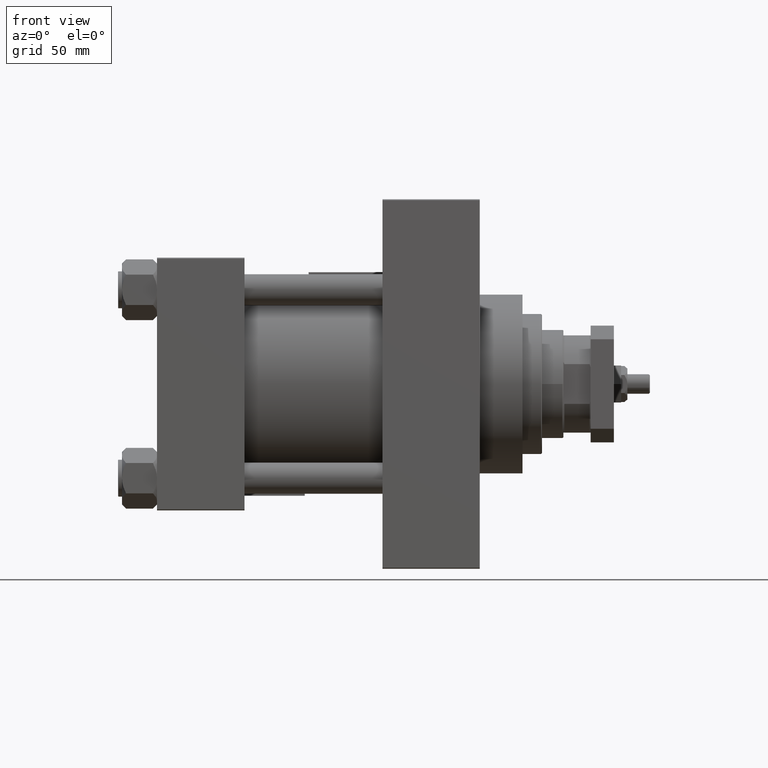
[diagram: clean part render]
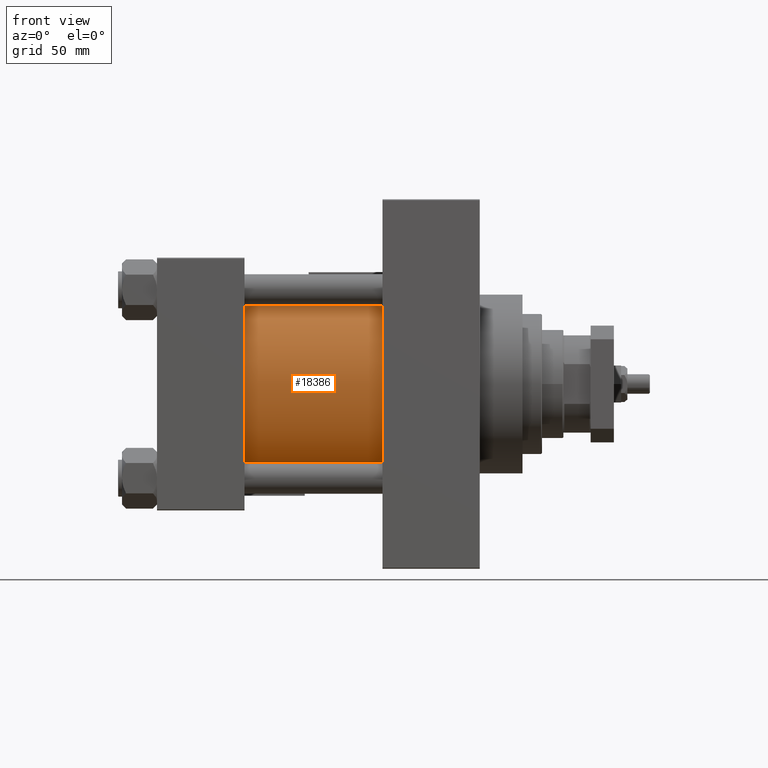
[diagram: same view with one face highlighted and labeled with its STEP entity id]
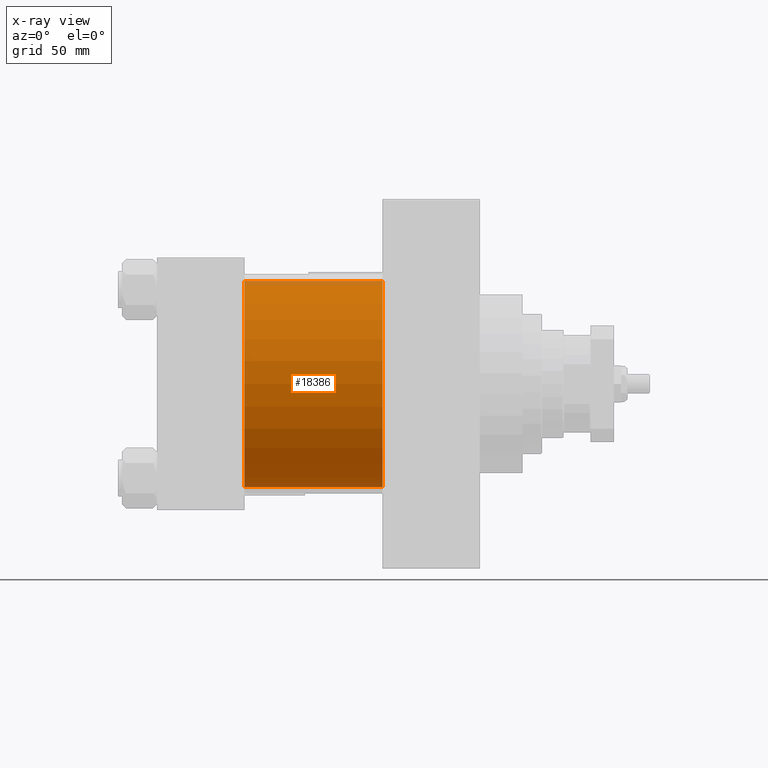
[diagram: x-ray of the same camera — body ghosted, the highlighted face saturated]
A machine part, front view. The second image highlights one B-rep face of the part: STEP entity #18386.
The next image is the same camera in x-ray: the body ghosted, the highlighted face saturated — about 4% of this face is hidden behind the body in this view.
In plain terms, the highlighted cylindrical surface (partial cylindrical patch) has radius 53 mm, axis along (-1, -0, -0).
Its self-contained STEP definition (entity closure, byte-faithful):
#90 = CARTESIAN_POINT ( 'NONE',  ( 115.9999999999999858, -2.602085213965210642E-15, 53.00000000000000711 ) ) ;
#797 = VECTOR ( 'NONE', #25672, 1000.000000000000000 ) ;
#1579 = AXIS2_PLACEMENT_3D ( 'NONE', #8775, #4701, #21202 ) ;
#3713 = VECTOR ( 'NONE', #29297, 1000.000000000000000 ) ;
#4701 = DIRECTION ( 'NONE',  ( 1.000000000000000000, 0.000000000000000000, 0.000000000000000000 ) ) ;
#4705 = DIRECTION ( 'NONE',  ( -1.000000000000000000, -0.000000000000000000, -0.000000000000000000 ) ) ;
#5185 = CARTESIAN_POINT ( 'NONE',  ( 115.9999999999999858, 3.888542821515762466E-15, -53.00000000000000711 ) ) ;
#5478 = VERTEX_POINT ( 'NONE', #90 ) ;
#7929 = CARTESIAN_POINT ( 'NONE',  ( 115.9999999999999858, 3.888542821515762466E-15, -53.00000000000000711 ) ) ;
#8228 = FACE_OUTER_BOUND ( 'NONE', #12070, .T. ) ;
#8775 = CARTESIAN_POINT ( 'NONE',  ( 115.9999999999999858, -2.602085213965210642E-15, 0.000000000000000000 ) ) ;
#10771 = EDGE_CURVE ( 'NONE', #34994, #49829, #31048, .T. ) ;
#12031 = DIRECTION ( 'NONE',  ( 0.000000000000000000, 0.000000000000000000, 1.000000000000000000 ) ) ;
#12070 = EDGE_LOOP ( 'NONE', ( #32543, #18021, #23702, #49463 ) ) ;
#12889 = AXIS2_PLACEMENT_3D ( 'NONE', #48792, #35611, #27761 ) ;
#16028 = LINE ( 'NONE', #7929, #797 ) ;
#16083 = CARTESIAN_POINT ( 'NONE',  ( 115.9999999999999858, -2.602085213965210642E-15, 0.000000000000000000 ) ) ;
#18021 = ORIENTED_EDGE ( 'NONE', *, *, #50248, .F. ) ;
#18386 = ADVANCED_FACE ( 'NONE', ( #8228 ), #32321, .T. ) ;
#21202 = DIRECTION ( 'NONE',  ( 0.000000000000000000, 0.000000000000000000, -1.000000000000000000 ) ) ;
#23702 = ORIENTED_EDGE ( 'NONE', *, *, #28001, .T. ) ;
#25672 = DIRECTION ( 'NONE',  ( -1.000000000000000000, -0.000000000000000000, -0.000000000000000000 ) ) ;
#25847 = AXIS2_PLACEMENT_3D ( 'NONE', #16083, #4705, #12031 ) ;
#27761 = DIRECTION ( 'NONE',  ( 0.000000000000000000, 0.000000000000000000, 1.000000000000000000 ) ) ;
#28001 = EDGE_CURVE ( 'NONE', #5478, #34994, #53076, .T. ) ;
#28322 = CARTESIAN_POINT ( 'NONE',  ( 45.00000000000000000, 3.888542821515762466E-15, -53.00000000000000711 ) ) ;
#29297 = DIRECTION ( 'NONE',  ( -1.000000000000000000, -0.000000000000000000, -0.000000000000000000 ) ) ;
#30070 = CIRCLE ( 'NONE', #1579, 53.00000000000000711 ) ;
#31048 = CIRCLE ( 'NONE', #12889, 53.00000000000000711 ) ;
#32321 = CYLINDRICAL_SURFACE ( 'NONE', #25847, 53.00000000000000711 ) ;
#32543 = ORIENTED_EDGE ( 'NONE', *, *, #42677, .F. ) ;
#34994 = VERTEX_POINT ( 'NONE', #44500 ) ;
#35611 = DIRECTION ( 'NONE',  ( 1.000000000000000000, -0.000000000000000000, 0.000000000000000000 ) ) ;
#42677 = EDGE_CURVE ( 'NONE', #47653, #49829, #16028, .T. ) ;
#44500 = CARTESIAN_POINT ( 'NONE',  ( 45.00000000000000000, -2.602085213965210642E-15, 53.00000000000000711 ) ) ;
#46018 = CARTESIAN_POINT ( 'NONE',  ( 115.9999999999999858, -2.602085213965210642E-15, 53.00000000000000711 ) ) ;
#47653 = VERTEX_POINT ( 'NONE', #5185 ) ;
#48792 = CARTESIAN_POINT ( 'NONE',  ( 45.00000000000000000, -2.602085213965210642E-15, 0.000000000000000000 ) ) ;
#49463 = ORIENTED_EDGE ( 'NONE', *, *, #10771, .T. ) ;
#49829 = VERTEX_POINT ( 'NONE', #28322 ) ;
#50248 = EDGE_CURVE ( 'NONE', #5478, #47653, #30070, .T. ) ;
#53076 = LINE ( 'NONE', #46018, #3713 ) ;